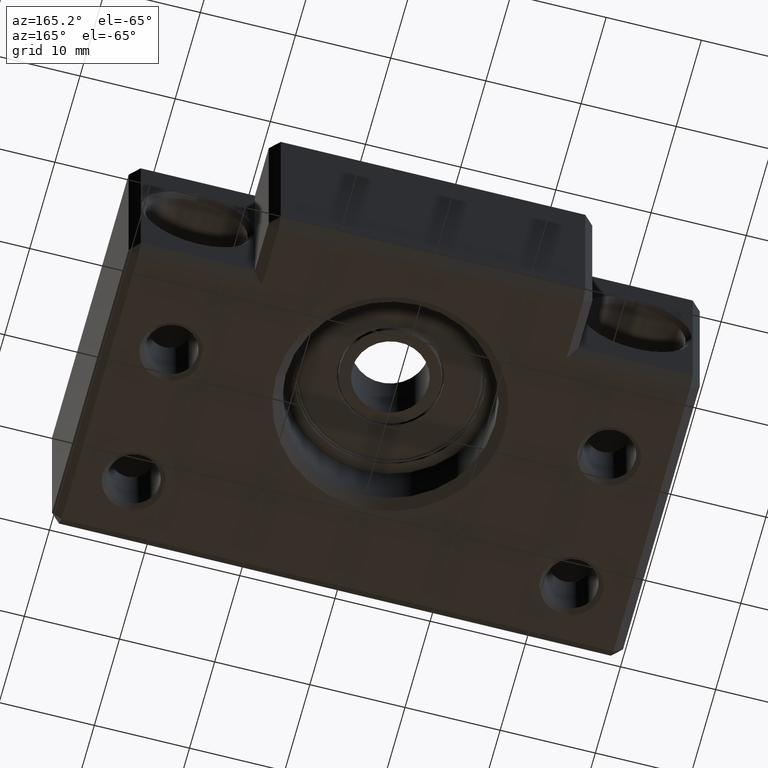
[diagram: clean part render]
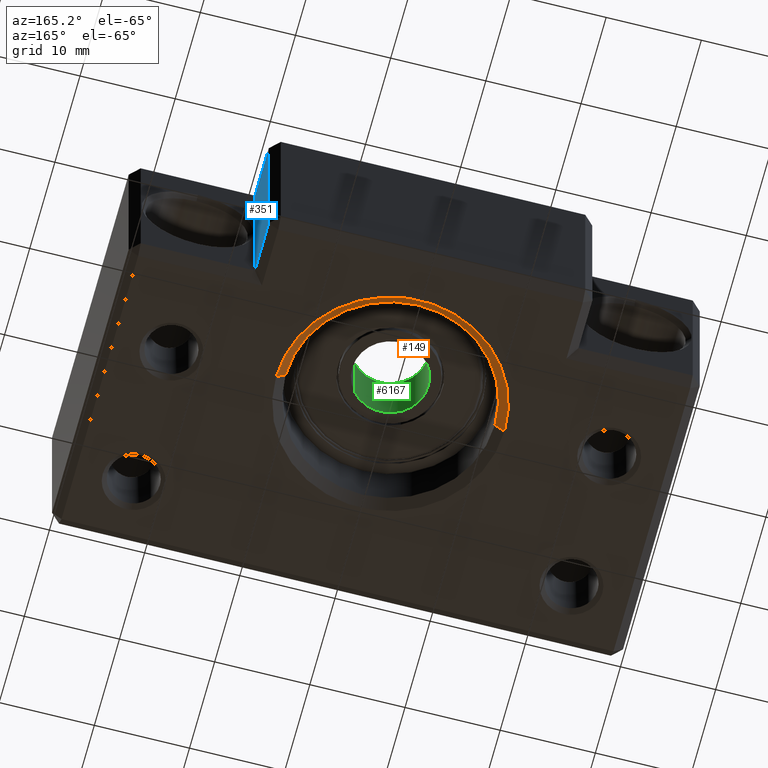
[diagram: same view with three faces highlighted in distinct colors, each labeled with its STEP entity id]
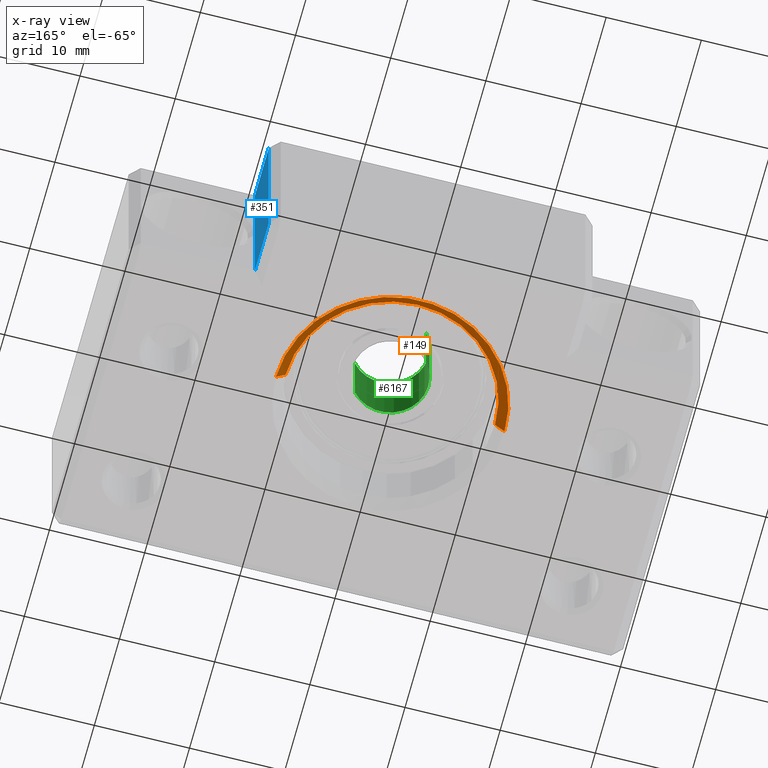
[diagram: x-ray of the same camera — body ghosted, the three highlighted faces saturated]
A machine part, auxiliary view with three faces highlighted in distinct colors.
The next image is the same camera in x-ray (body ghosted, the three faces saturated) — at least one of them is partly hidden behind the body in this view.
Their STEP definitions:

[orange] entity #149 — the highlighted conical surface has half-angle 45 deg.
#125 = ORIENTED_EDGE ( 'NONE', *, *, #1720, .F. ) ;
#134 = ORIENTED_EDGE ( 'NONE', *, *, #569, .T. ) ;
#136 = ORIENTED_EDGE ( 'NONE', *, *, #5700, .F. ) ;
#141 = ORIENTED_EDGE ( 'NONE', *, *, #6301, .F. ) ;
#149 = ADVANCED_FACE ( 'NONE', ( #972 ), #971, .F. ) ;
#173 = EDGE_LOOP ( 'NONE', ( #136, #125, #134, #141 ) ) ;
#567 = VERTEX_POINT ( 'NONE', #1859 ) ;
#569 = EDGE_CURVE ( 'NONE', #5699, #567, #1858, .T. ) ;
#651 = VERTEX_POINT ( 'NONE', #2101 ) ;
#968 = DIRECTION ( 'NONE',  ( -0.0000000000000000000, -0.0000000000000000000, -1.000000000000000000 ) ) ;
#969 = CARTESIAN_POINT ( 'NONE',  ( 1.442981060739971800E-014, 21.99999999999999300, -10.00000000000000000 ) ) ;
#970 = AXIS2_PLACEMENT_3D ( 'NONE', #969, #968, #1033 ) ;
#971 = CONICAL_SURFACE ( 'NONE', #970, 12.00000000000000400, 0.7853981633974447300 ) ;
#972 = FACE_OUTER_BOUND ( 'NONE', #173, .T. ) ;
#1033 = DIRECTION ( 'NONE',  ( -1.000000000000000000, 0.0000000000000000000, 0.0000000000000000000 ) ) ;
#1720 = EDGE_CURVE ( 'NONE', #5699, #5695, #2515, .T. ) ;
#1855 = DIRECTION ( 'NONE',  ( -0.7071067811865450200, 0.0000000000000000000, -0.7071067811865500200 ) ) ;
#1856 = VECTOR ( 'NONE', #1855, 1000.000000000000000 ) ;
#1857 = CARTESIAN_POINT ( 'NONE',  ( -11.99999999999998900, 21.99999999999999300, -10.00000000000000000 ) ) ;
#1858 = LINE ( 'NONE', #1857, #1856 ) ;
#1859 = CARTESIAN_POINT ( 'NONE',  ( -11.99999999999998900, 21.99999999999999300, -10.00000000000000000 ) ) ;
#2101 = CARTESIAN_POINT ( 'NONE',  ( 12.00000000000001800, 21.99999999999999300, -10.00000000000000000 ) ) ;
#2451 = CARTESIAN_POINT ( 'NONE',  ( 1.442981060739971800E-014, 21.99999999999999300, -8.999999999999989300 ) ) ;
#2512 = DIRECTION ( 'NONE',  ( 1.000000000000000000, 0.0000000000000000000, 0.0000000000000000000 ) ) ;
#2513 = DIRECTION ( 'NONE',  ( -0.0000000000000000000, -0.0000000000000000000, -1.000000000000000000 ) ) ;
#2514 = AXIS2_PLACEMENT_3D ( 'NONE', #2451, #2513, #2512 ) ;
#2515 = CIRCLE ( 'NONE', #2514, 11.00000000000000000 ) ;
#3694 = CARTESIAN_POINT ( 'NONE',  ( 11.00000000000001200, 21.99999999999999300, -8.999999999999989300 ) ) ;
#3747 = DIRECTION ( 'NONE',  ( 0.7071067811865450200, 8.659274570719324600E-017, -0.7071067811865500200 ) ) ;
#3748 = VECTOR ( 'NONE', #3747, 1000.000000000000000 ) ;
#3749 = CARTESIAN_POINT ( 'NONE',  ( 12.00000000000001800, 21.99999999999999300, -10.00000000000000000 ) ) ;
#3750 = LINE ( 'NONE', #3749, #3748 ) ;
#3751 = CARTESIAN_POINT ( 'NONE',  ( -10.99999999999998600, 21.99999999999999300, -8.999999999999989300 ) ) ;
#4772 = DIRECTION ( 'NONE',  ( 1.000000000000000000, 0.0000000000000000000, 0.0000000000000000000 ) ) ;
#4773 = DIRECTION ( 'NONE',  ( -0.0000000000000000000, 0.0000000000000000000, 1.000000000000000000 ) ) ;
#4774 = CARTESIAN_POINT ( 'NONE',  ( 1.442981060739971800E-014, 21.99999999999999300, -10.00000000000000000 ) ) ;
#4775 = AXIS2_PLACEMENT_3D ( 'NONE', #4774, #4773, #4772 ) ;
#4776 = CIRCLE ( 'NONE', #4775, 12.00000000000000400 ) ;
#5695 = VERTEX_POINT ( 'NONE', #3694 ) ;
#5699 = VERTEX_POINT ( 'NONE', #3751 ) ;
#5700 = EDGE_CURVE ( 'NONE', #5695, #651, #3750, .T. ) ;
#6301 = EDGE_CURVE ( 'NONE', #651, #567, #4776, .T. ) ;

[blue] entity #351 — the highlighted planar face has unit normal (-1, 0, 0).
#331 = EDGE_LOOP ( 'NONE', ( #332, #3240, #3274, #3280 ) ) ;
#332 = ORIENTED_EDGE ( 'NONE', *, *, #3164, .T. ) ;
#351 = ADVANCED_FACE ( 'NONE', ( #1409 ), #1404, .F. ) ;
#399 = EDGE_CURVE ( 'NONE', #6354, #3208, #1498, .T. ) ;
#1400 = DIRECTION ( 'NONE',  ( -1.067522139062649700E-015, -1.000000000000000000, 0.0000000000000000000 ) ) ;
#1401 = DIRECTION ( 'NONE',  ( -1.000000000000000000, 1.067522139062649700E-015, 0.0000000000000000000 ) ) ;
#1402 = CARTESIAN_POINT ( 'NONE',  ( 17.00000000000000700, 32.50000000000000000, 10.00000000000000000 ) ) ;
#1403 = AXIS2_PLACEMENT_3D ( 'NONE', #1402, #1401, #1400 ) ;
#1404 = PLANE ( 'NONE',  #1403 ) ;
#1409 = FACE_OUTER_BOUND ( 'NONE', #331, .T. ) ;
#1495 = DIRECTION ( 'NONE',  ( 1.067522139062649700E-015, 1.000000000000000000, 0.0000000000000000000 ) ) ;
#1496 = VECTOR ( 'NONE', #1495, 1000.000000000000000 ) ;
#1497 = CARTESIAN_POINT ( 'NONE',  ( 17.00000000000000700, 32.50000000000000000, -8.999999999999985800 ) ) ;
#1498 = LINE ( 'NONE', #1497, #1496 ) ;
#2550 = DIRECTION ( 'NONE',  ( 0.0000000000000000000, 0.0000000000000000000, 1.000000000000000000 ) ) ;
#2551 = VECTOR ( 'NONE', #2550, 1000.000000000000000 ) ;
#2552 = CARTESIAN_POINT ( 'NONE',  ( 17.00000000000001400, 37.99999999999999300, 10.00000000000000000 ) ) ;
#2553 = LINE ( 'NONE', #2552, #2551 ) ;
#2614 = DIRECTION ( 'NONE',  ( -1.067522139062649700E-015, -1.000000000000000000, -0.0000000000000000000 ) ) ;
#2615 = VECTOR ( 'NONE', #2614, 1000.000000000000000 ) ;
#2616 = CARTESIAN_POINT ( 'NONE',  ( 17.00000000000000700, 32.50000000000000000, 8.999999999999978700 ) ) ;
#2617 = LINE ( 'NONE', #2616, #2615 ) ;
#2619 = CARTESIAN_POINT ( 'NONE',  ( 17.00000000000001400, 37.99999999999999300, -8.999999999999985800 ) ) ;
#2620 = CARTESIAN_POINT ( 'NONE',  ( 17.00000000000001400, 37.99999999999999300, 8.999999999999978700 ) ) ;
#3164 = EDGE_CURVE ( 'NONE', #3208, #3203, #2553, .T. ) ;
#3203 = VERTEX_POINT ( 'NONE', #2620 ) ;
#3208 = VERTEX_POINT ( 'NONE', #2619 ) ;
#3240 = ORIENTED_EDGE ( 'NONE', *, *, #3257, .T. ) ;
#3257 = EDGE_CURVE ( 'NONE', #3203, #6353, #2617, .T. ) ;
#3274 = ORIENTED_EDGE ( 'NONE', *, *, #6352, .T. ) ;
#3280 = ORIENTED_EDGE ( 'NONE', *, *, #399, .T. ) ;
#4924 = CARTESIAN_POINT ( 'NONE',  ( 17.00000000000000700, 32.50000000000000000, -8.999999999999985800 ) ) ;
#4925 = CARTESIAN_POINT ( 'NONE',  ( 17.00000000000000700, 32.50000000000000000, 8.999999999999978700 ) ) ;
#4926 = DIRECTION ( 'NONE',  ( -0.0000000000000000000, -0.0000000000000000000, -1.000000000000000000 ) ) ;
#4927 = VECTOR ( 'NONE', #4926, 1000.000000000000000 ) ;
#4928 = CARTESIAN_POINT ( 'NONE',  ( 17.00000000000000700, 32.50000000000000000, 10.00000000000000000 ) ) ;
#4929 = LINE ( 'NONE', #4928, #4927 ) ;
#6352 = EDGE_CURVE ( 'NONE', #6353, #6354, #4929, .T. ) ;
#6353 = VERTEX_POINT ( 'NONE', #4925 ) ;
#6354 = VERTEX_POINT ( 'NONE', #4924 ) ;

[green] entity #6167 — the highlighted cylindrical surface (partial cylindrical patch) has radius 4 mm, axis along (0, 0, 1).
#4553 = DIRECTION ( 'NONE',  ( 0.7600861452965868000, -0.6498223231993310900, 0.0000000000000000000 ) ) ;
#4554 = DIRECTION ( 'NONE',  ( 0.0000000000000000000, 0.0000000000000000000, 1.000000000000000000 ) ) ;
#4555 = CARTESIAN_POINT ( 'NONE',  ( 1.498183340698498200E-014, 21.99999999999999300, 4.205999566599274400 ) ) ;
#4556 = AXIS2_PLACEMENT_3D ( 'NONE', #4555, #4554, #4553 ) ;
#4557 = CYLINDRICAL_SURFACE ( 'NONE', #4556, 4.000000000000001800 ) ;
#4558 = FACE_OUTER_BOUND ( 'NONE', #6165, .T. ) ;
#4559 = DIRECTION ( 'NONE',  ( 0.0000000000000000000, 0.0000000000000000000, 1.000000000000000000 ) ) ;
#4560 = VECTOR ( 'NONE', #4559, 1000.000000000000000 ) ;
#4561 = CARTESIAN_POINT ( 'NONE',  ( -3.040344581186333000, 24.59928929279731600, 4.205999566599274400 ) ) ;
#4562 = LINE ( 'NONE', #4561, #4560 ) ;
#4563 = CARTESIAN_POINT ( 'NONE',  ( 3.040344581186363600, 19.40071070720266600, -3.499999999999997800 ) ) ;
#4604 = CARTESIAN_POINT ( 'NONE',  ( -3.040344581186331700, 24.59928929279731600, -3.499999999999997800 ) ) ;
#4605 = DIRECTION ( 'NONE',  ( 0.7600861452965868000, -0.6498223231993310900, 0.0000000000000000000 ) ) ;
#4606 = DIRECTION ( 'NONE',  ( 0.0000000000000000000, 0.0000000000000000000, 1.000000000000000000 ) ) ;
#4607 = CARTESIAN_POINT ( 'NONE',  ( 1.498183340698498200E-014, 21.99999999999999300, -3.499999999999997800 ) ) ;
#4608 = AXIS2_PLACEMENT_3D ( 'NONE', #4607, #4606, #4605 ) ;
#4609 = CIRCLE ( 'NONE', #4608, 4.000000000000001800 ) ;
#4610 = CARTESIAN_POINT ( 'NONE',  ( -3.040344581186331700, 24.59928929279731600, 3.500000000000001300 ) ) ;
#4624 = CARTESIAN_POINT ( 'NONE',  ( 3.040344581186363600, 19.40071070720266600, 3.500000000000001300 ) ) ;
#4659 = DIRECTION ( 'NONE',  ( 0.0000000000000000000, 0.0000000000000000000, 1.000000000000000000 ) ) ;
#4660 = VECTOR ( 'NONE', #4659, 1000.000000000000000 ) ;
#4661 = CARTESIAN_POINT ( 'NONE',  ( 3.040344581186363600, 19.40071070720266600, 4.205999566599274400 ) ) ;
#4662 = LINE ( 'NONE', #4661, #4660 ) ;
#4667 = DIRECTION ( 'NONE',  ( 0.7600861452965868000, -0.6498223231993310900, 0.0000000000000000000 ) ) ;
#4668 = DIRECTION ( 'NONE',  ( 0.0000000000000000000, 0.0000000000000000000, 1.000000000000000000 ) ) ;
#4669 = CARTESIAN_POINT ( 'NONE',  ( 1.498183340698498200E-014, 21.99999999999999300, 3.500000000000001300 ) ) ;
#4670 = AXIS2_PLACEMENT_3D ( 'NONE', #4669, #4668, #4667 ) ;
#4675 = CIRCLE ( 'NONE', #4670, 4.000000000000001800 ) ;
#6163 = VERTEX_POINT ( 'NONE', #4563 ) ;
#6164 = EDGE_CURVE ( 'NONE', #6172, #6169, #4562, .T. ) ;
#6165 = EDGE_LOOP ( 'NONE', ( #6170, #6166, #6209, #6203 ) ) ;
#6166 = ORIENTED_EDGE ( 'NONE', *, *, #6164, .T. ) ;
#6167 = ADVANCED_FACE ( 'NONE', ( #4558 ), #4557, .F. ) ;
#6169 = VERTEX_POINT ( 'NONE', #4610 ) ;
#6170 = ORIENTED_EDGE ( 'NONE', *, *, #6171, .F. ) ;
#6171 = EDGE_CURVE ( 'NONE', #6172, #6163, #4609, .T. ) ;
#6172 = VERTEX_POINT ( 'NONE', #4604 ) ;
#6201 = VERTEX_POINT ( 'NONE', #4624 ) ;
#6203 = ORIENTED_EDGE ( 'NONE', *, *, #6213, .F. ) ;
#6209 = ORIENTED_EDGE ( 'NONE', *, *, #6210, .T. ) ;
#6210 = EDGE_CURVE ( 'NONE', #6169, #6201, #4675, .T. ) ;
#6213 = EDGE_CURVE ( 'NONE', #6163, #6201, #4662, .T. ) ;